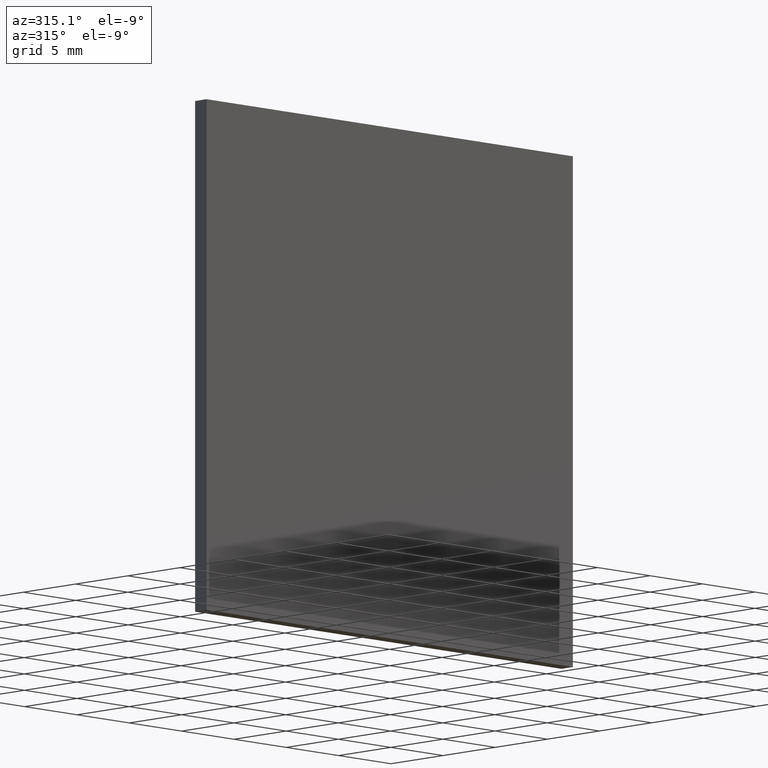
[diagram: clean part render]
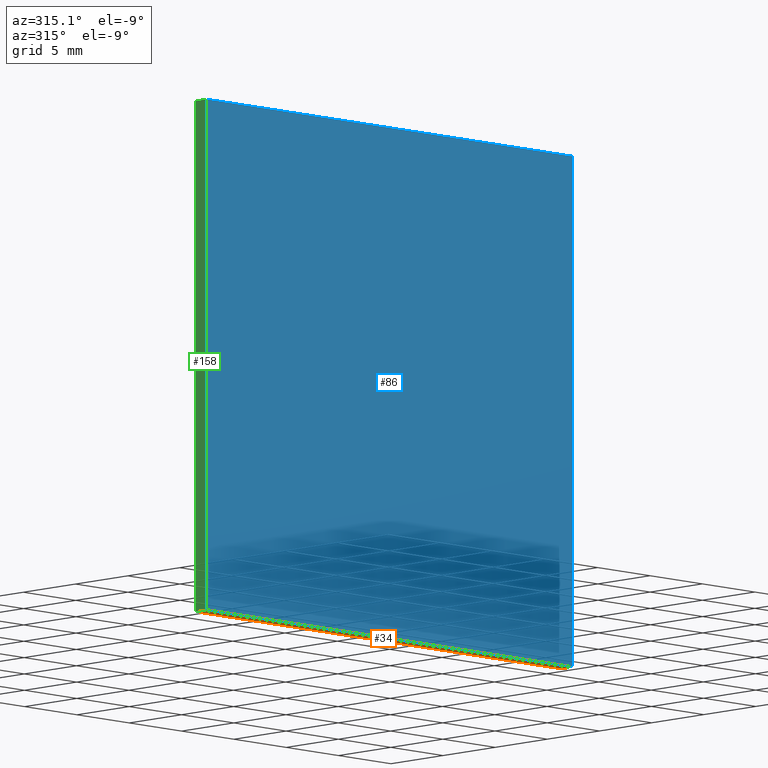
[diagram: same view with three faces highlighted in distinct colors, each labeled with its STEP entity id]
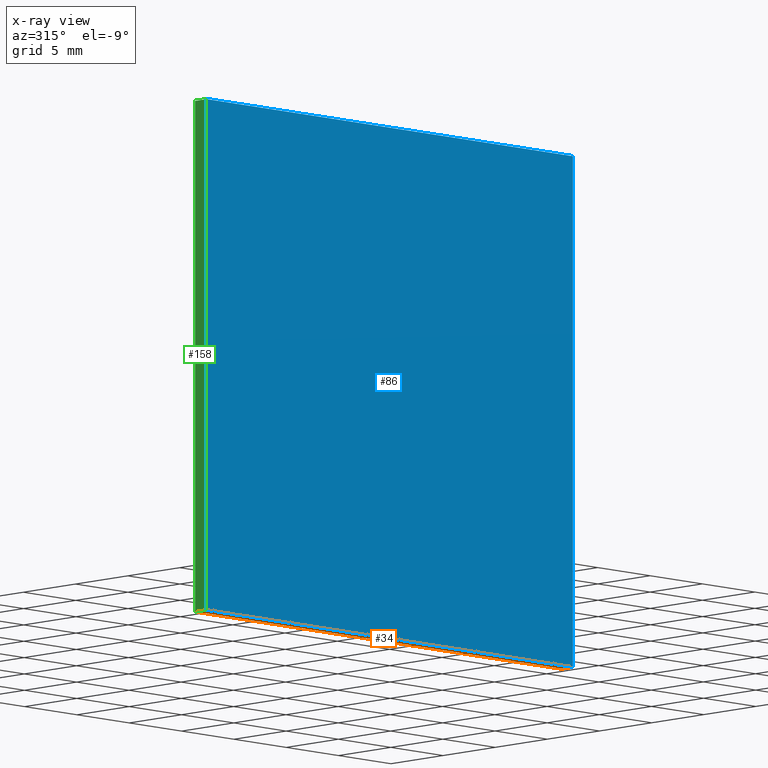
[diagram: x-ray of the same camera — body ghosted, the three highlighted faces saturated]
A machine part, auxiliary view with three faces highlighted in distinct colors.
The next image is the same camera in x-ray (body ghosted, the three faces saturated) — at least one of them is partly hidden behind the body in this view.
Their STEP definitions:

[orange] entity #34 — the highlighted planar face has unit normal (0, 0, 1).
#1 = EDGE_CURVE ( 'NONE', #122, #13, #82, .T. ) ;
#3 = ORIENTED_EDGE ( 'NONE', *, *, #123, .T. ) ;
#10 = VECTOR ( 'NONE', #115, 1000.000000000000000 ) ;
#12 = VECTOR ( 'NONE', #74, 1000.000000000000000 ) ;
#13 = VERTEX_POINT ( 'NONE', #67 ) ;
#15 = LINE ( 'NONE', #89, #136 ) ;
#24 = CARTESIAN_POINT ( 'NONE',  ( 17.50000000000000000, 0.0000000000000000000, -17.50000000000000000 ) ) ;
#34 = ADVANCED_FACE ( 'NONE', ( #105 ), #36, .F. ) ;
#36 = PLANE ( 'NONE',  #132 ) ;
#52 = ORIENTED_EDGE ( 'NONE', *, *, #85, .T. ) ;
#66 = VERTEX_POINT ( 'NONE', #144 ) ;
#67 = CARTESIAN_POINT ( 'NONE',  ( -17.50000000000000000, 0.0000000000000000000, -17.50000000000000000 ) ) ;
#74 = DIRECTION ( 'NONE',  ( -0.0000000000000000000, -1.000000000000000000, -0.0000000000000000000 ) ) ;
#75 = VECTOR ( 'NONE', #160, 1000.000000000000000 ) ;
#78 = VERTEX_POINT ( 'NONE', #24 ) ;
#82 = LINE ( 'NONE', #95, #10 ) ;
#83 = DIRECTION ( 'NONE',  ( 0.0000000000000000000, 0.0000000000000000000, 1.000000000000000000 ) ) ;
#85 = EDGE_CURVE ( 'NONE', #66, #78, #110, .T. ) ;
#88 = EDGE_LOOP ( 'NONE', ( #3, #173, #92, #52 ) ) ;
#89 = CARTESIAN_POINT ( 'NONE',  ( -17.50000000000000000, 0.0000000000000000000, -17.50000000000000000 ) ) ;
#92 = ORIENTED_EDGE ( 'NONE', *, *, #109, .F. ) ;
#94 = DIRECTION ( 'NONE',  ( 1.000000000000000000, 0.0000000000000000000, -0.0000000000000000000 ) ) ;
#95 = CARTESIAN_POINT ( 'NONE',  ( -17.50000000000000000, 1.100000000000000100, -17.50000000000000000 ) ) ;
#105 = FACE_OUTER_BOUND ( 'NONE', #88, .T. ) ;
#109 = EDGE_CURVE ( 'NONE', #66, #122, #138, .T. ) ;
#110 = LINE ( 'NONE', #142, #12 ) ;
#115 = DIRECTION ( 'NONE',  ( -0.0000000000000000000, -1.000000000000000000, -0.0000000000000000000 ) ) ;
#122 = VERTEX_POINT ( 'NONE', #127 ) ;
#123 = EDGE_CURVE ( 'NONE', #78, #13, #15, .T. ) ;
#127 = CARTESIAN_POINT ( 'NONE',  ( -17.50000000000000000, 1.100000000000000100, -17.50000000000000000 ) ) ;
#130 = DIRECTION ( 'NONE',  ( -1.000000000000000000, -0.0000000000000000000, -0.0000000000000000000 ) ) ;
#132 = AXIS2_PLACEMENT_3D ( 'NONE', #193, #83, #94 ) ;
#136 = VECTOR ( 'NONE', #130, 1000.000000000000000 ) ;
#138 = LINE ( 'NONE', #159, #75 ) ;
#142 = CARTESIAN_POINT ( 'NONE',  ( 17.50000000000000000, 1.100000000000000100, -17.50000000000000000 ) ) ;
#144 = CARTESIAN_POINT ( 'NONE',  ( 17.50000000000000000, 1.100000000000000100, -17.50000000000000000 ) ) ;
#159 = CARTESIAN_POINT ( 'NONE',  ( -17.50000000000000000, 1.100000000000000100, -17.50000000000000000 ) ) ;
#160 = DIRECTION ( 'NONE',  ( -1.000000000000000000, -0.0000000000000000000, -0.0000000000000000000 ) ) ;
#173 = ORIENTED_EDGE ( 'NONE', *, *, #1, .F. ) ;
#193 = CARTESIAN_POINT ( 'NONE',  ( -17.50000000000000000, 1.100000000000000100, -17.50000000000000000 ) ) ;

[blue] entity #86 — the highlighted planar face has unit normal (0, 1, 0).
#13 = VERTEX_POINT ( 'NONE', #67 ) ;
#15 = LINE ( 'NONE', #89, #136 ) ;
#18 = CARTESIAN_POINT ( 'NONE',  ( 0.0000000000000000000, 0.0000000000000000000, 0.0000000000000000000 ) ) ;
#23 = CARTESIAN_POINT ( 'NONE',  ( -17.50000000000000000, 0.0000000000000000000, -17.50000000000000000 ) ) ;
#24 = CARTESIAN_POINT ( 'NONE',  ( 17.50000000000000000, 0.0000000000000000000, -17.50000000000000000 ) ) ;
#27 = ORIENTED_EDGE ( 'NONE', *, *, #201, .F. ) ;
#33 = FACE_OUTER_BOUND ( 'NONE', #80, .T. ) ;
#46 = VERTEX_POINT ( 'NONE', #175 ) ;
#54 = DIRECTION ( 'NONE',  ( 0.0000000000000000000, 1.000000000000000000, 0.0000000000000000000 ) ) ;
#67 = CARTESIAN_POINT ( 'NONE',  ( -17.50000000000000000, 0.0000000000000000000, -17.50000000000000000 ) ) ;
#77 = VECTOR ( 'NONE', #196, 1000.000000000000000 ) ;
#78 = VERTEX_POINT ( 'NONE', #24 ) ;
#80 = EDGE_LOOP ( 'NONE', ( #149, #96, #27, #134 ) ) ;
#81 = CARTESIAN_POINT ( 'NONE',  ( -17.50000000000000000, 0.0000000000000000000, 17.50000000000000000 ) ) ;
#86 = ADVANCED_FACE ( 'NONE', ( #33 ), #113, .F. ) ;
#89 = CARTESIAN_POINT ( 'NONE',  ( -17.50000000000000000, 0.0000000000000000000, -17.50000000000000000 ) ) ;
#93 = VECTOR ( 'NONE', #178, 1000.000000000000000 ) ;
#96 = ORIENTED_EDGE ( 'NONE', *, *, #148, .F. ) ;
#113 = PLANE ( 'NONE',  #155 ) ;
#116 = CARTESIAN_POINT ( 'NONE',  ( -17.50000000000000000, 0.0000000000000000000, 17.50000000000000000 ) ) ;
#123 = EDGE_CURVE ( 'NONE', #78, #13, #15, .T. ) ;
#130 = DIRECTION ( 'NONE',  ( -1.000000000000000000, -0.0000000000000000000, -0.0000000000000000000 ) ) ;
#133 = LINE ( 'NONE', #23, #77 ) ;
#134 = ORIENTED_EDGE ( 'NONE', *, *, #123, .F. ) ;
#136 = VECTOR ( 'NONE', #130, 1000.000000000000000 ) ;
#137 = DIRECTION ( 'NONE',  ( -0.0000000000000000000, -0.0000000000000000000, -1.000000000000000000 ) ) ;
#148 = EDGE_CURVE ( 'NONE', #180, #46, #176, .T. ) ;
#149 = ORIENTED_EDGE ( 'NONE', *, *, #185, .F. ) ;
#150 = CARTESIAN_POINT ( 'NONE',  ( 17.50000000000000000, 0.0000000000000000000, -17.50000000000000000 ) ) ;
#155 = AXIS2_PLACEMENT_3D ( 'NONE', #18, #54, #156 ) ;
#156 = DIRECTION ( 'NONE',  ( 0.0000000000000000000, -0.0000000000000000000, 1.000000000000000000 ) ) ;
#175 = CARTESIAN_POINT ( 'NONE',  ( 17.50000000000000000, 0.0000000000000000000, 17.50000000000000000 ) ) ;
#176 = LINE ( 'NONE', #81, #93 ) ;
#178 = DIRECTION ( 'NONE',  ( 1.000000000000000000, 0.0000000000000000000, 0.0000000000000000000 ) ) ;
#179 = VECTOR ( 'NONE', #137, 1000.000000000000000 ) ;
#180 = VERTEX_POINT ( 'NONE', #116 ) ;
#185 = EDGE_CURVE ( 'NONE', #46, #78, #198, .T. ) ;
#196 = DIRECTION ( 'NONE',  ( 0.0000000000000000000, 0.0000000000000000000, 1.000000000000000000 ) ) ;
#198 = LINE ( 'NONE', #150, #179 ) ;
#201 = EDGE_CURVE ( 'NONE', #13, #180, #133, .T. ) ;

[green] entity #158 — the highlighted planar face has unit normal (1, 0, 0).
#1 = EDGE_CURVE ( 'NONE', #122, #13, #82, .T. ) ;
#10 = VECTOR ( 'NONE', #115, 1000.000000000000000 ) ;
#13 = VERTEX_POINT ( 'NONE', #67 ) ;
#20 = DIRECTION ( 'NONE',  ( -0.0000000000000000000, -1.000000000000000000, -0.0000000000000000000 ) ) ;
#23 = CARTESIAN_POINT ( 'NONE',  ( -17.50000000000000000, 0.0000000000000000000, -17.50000000000000000 ) ) ;
#28 = ORIENTED_EDGE ( 'NONE', *, *, #63, .F. ) ;
#32 = CARTESIAN_POINT ( 'NONE',  ( -17.50000000000000000, 1.100000000000000100, -17.50000000000000000 ) ) ;
#41 = VECTOR ( 'NONE', #20, 1000.000000000000000 ) ;
#44 = ORIENTED_EDGE ( 'NONE', *, *, #201, .T. ) ;
#47 = FACE_OUTER_BOUND ( 'NONE', #104, .T. ) ;
#48 = ORIENTED_EDGE ( 'NONE', *, *, #1, .T. ) ;
#53 = PLANE ( 'NONE',  #166 ) ;
#63 = EDGE_CURVE ( 'NONE', #119, #180, #69, .T. ) ;
#67 = CARTESIAN_POINT ( 'NONE',  ( -17.50000000000000000, 0.0000000000000000000, -17.50000000000000000 ) ) ;
#69 = LINE ( 'NONE', #151, #41 ) ;
#70 = CARTESIAN_POINT ( 'NONE',  ( -17.50000000000000000, 1.100000000000000100, -17.50000000000000000 ) ) ;
#76 = DIRECTION ( 'NONE',  ( 0.0000000000000000000, 0.0000000000000000000, 1.000000000000000000 ) ) ;
#77 = VECTOR ( 'NONE', #196, 1000.000000000000000 ) ;
#82 = LINE ( 'NONE', #95, #10 ) ;
#95 = CARTESIAN_POINT ( 'NONE',  ( -17.50000000000000000, 1.100000000000000100, -17.50000000000000000 ) ) ;
#97 = DIRECTION ( 'NONE',  ( 1.000000000000000000, 0.0000000000000000000, 0.0000000000000000000 ) ) ;
#102 = VECTOR ( 'NONE', #76, 1000.000000000000000 ) ;
#104 = EDGE_LOOP ( 'NONE', ( #44, #28, #191, #48 ) ) ;
#115 = DIRECTION ( 'NONE',  ( -0.0000000000000000000, -1.000000000000000000, -0.0000000000000000000 ) ) ;
#116 = CARTESIAN_POINT ( 'NONE',  ( -17.50000000000000000, 0.0000000000000000000, 17.50000000000000000 ) ) ;
#119 = VERTEX_POINT ( 'NONE', #128 ) ;
#122 = VERTEX_POINT ( 'NONE', #127 ) ;
#127 = CARTESIAN_POINT ( 'NONE',  ( -17.50000000000000000, 1.100000000000000100, -17.50000000000000000 ) ) ;
#128 = CARTESIAN_POINT ( 'NONE',  ( -17.50000000000000000, 1.100000000000000100, 17.50000000000000000 ) ) ;
#133 = LINE ( 'NONE', #23, #77 ) ;
#151 = CARTESIAN_POINT ( 'NONE',  ( -17.50000000000000000, 1.100000000000000100, 17.50000000000000000 ) ) ;
#158 = ADVANCED_FACE ( 'NONE', ( #47 ), #53, .F. ) ;
#166 = AXIS2_PLACEMENT_3D ( 'NONE', #70, #97, #192 ) ;
#180 = VERTEX_POINT ( 'NONE', #116 ) ;
#182 = LINE ( 'NONE', #32, #102 ) ;
#191 = ORIENTED_EDGE ( 'NONE', *, *, #197, .F. ) ;
#192 = DIRECTION ( 'NONE',  ( 0.0000000000000000000, 0.0000000000000000000, -1.000000000000000000 ) ) ;
#196 = DIRECTION ( 'NONE',  ( 0.0000000000000000000, 0.0000000000000000000, 1.000000000000000000 ) ) ;
#197 = EDGE_CURVE ( 'NONE', #122, #119, #182, .T. ) ;
#201 = EDGE_CURVE ( 'NONE', #13, #180, #133, .T. ) ;